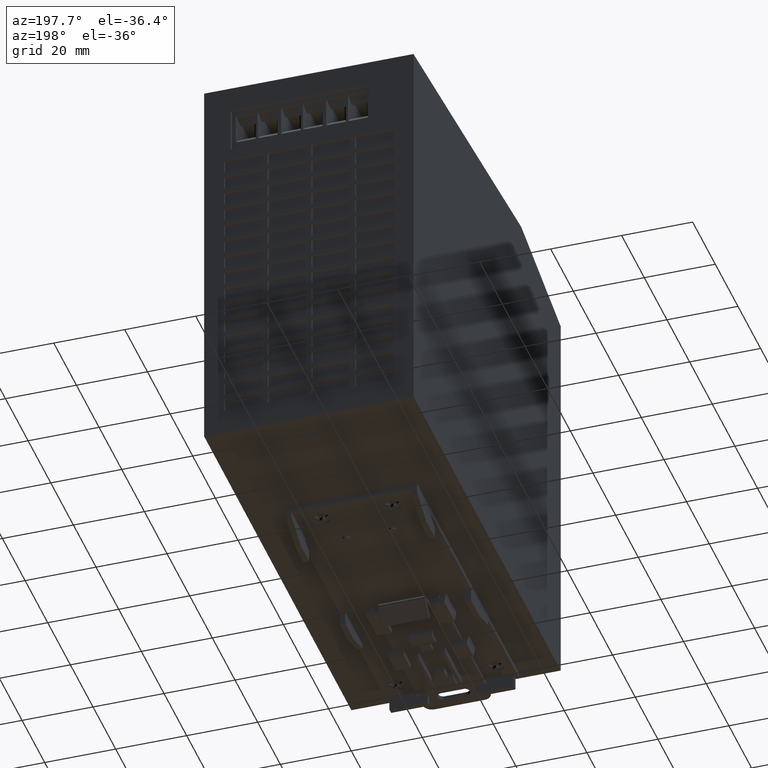
[diagram: clean part render]
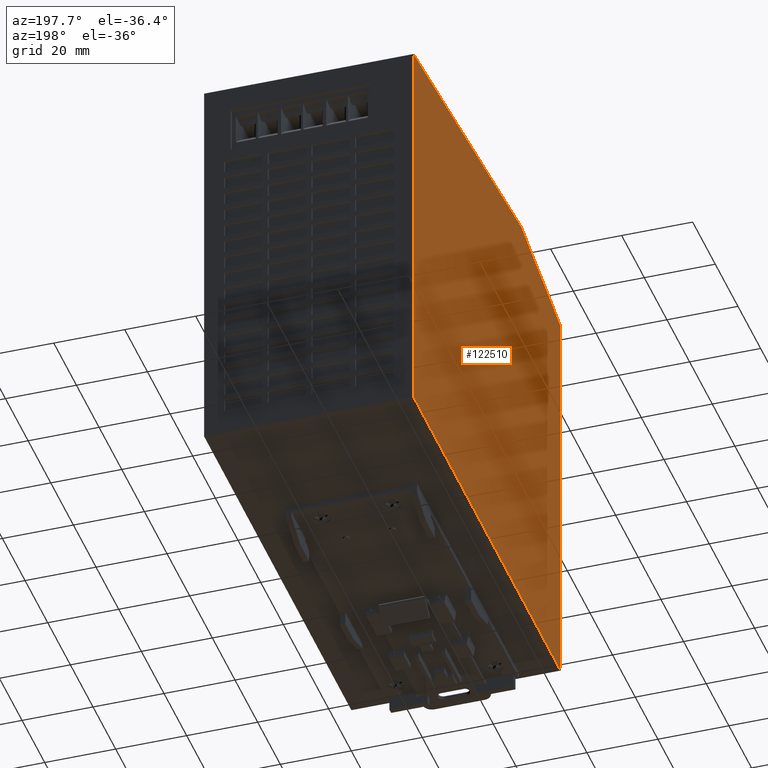
[diagram: same view with one face highlighted and labeled with its STEP entity id]
A machine part, auxiliary view. The second image highlights one B-rep face of the part: STEP entity #122510.
In plain terms, the highlighted planar face has unit normal (1, 0, 0).
Its self-contained STEP definition (entity closure, byte-faithful):
#21200=CARTESIAN_POINT('',(0.,0.,8.24457053163474));
#21210=DIRECTION('',(0.,-0.99999999999553,2.98985317938209E-6));
#21220=VECTOR('',#21210,1.);
#21230=LINE('',#21200,#21220);
#21240=CARTESIAN_POINT('',(0.,133.09953961981,8.24417258355303));
#21250=VERTEX_POINT('',#21240);
#21260=CARTESIAN_POINT('',(0.,3.06755310461,8.24456136010134));
#21270=VERTEX_POINT('',#21260);
#21280=EDGE_CURVE('',#21250,#21270,#21230,.T.);
#22450=CARTESIAN_POINT('',(0.,38.0066903348388,131.664919593357));
#22460=VERTEX_POINT('',#22450);
#22630=CARTESIAN_POINT('',(0.,3.06755310461,122.953614286679));
#22640=VERTEX_POINT('',#22630);
#22670=CARTESIAN_POINT('',(0.,0.,122.188787397491));
#22680=DIRECTION('',(0.,-0.970295726275989,-0.241921895599697));
#22690=VECTOR('',#22680,1.);
#22700=LINE('',#22670,#22690);
#22710=EDGE_CURVE('',#22460,#22640,#22700,.T.);
#45020=CARTESIAN_POINT('',(0.,133.09953961981,122.508519645316));
#45030=VERTEX_POINT('',#45020);
#45080=CARTESIAN_POINT('',(0.,133.09953961981,0.));
#45090=DIRECTION('',(0.,0.,1.));
#45100=VECTOR('',#45090,1.);
#45110=LINE('',#45080,#45100);
#45120=EDGE_CURVE('',#21250,#45030,#45110,.T.);
#122240=CARTESIAN_POINT('',(0.,3.06755310461,0.));
#122250=DIRECTION('',(0.,0.,1.));
#122260=VECTOR('',#122250,1.);
#122270=LINE('',#122240,#122260);
#122280=EDGE_CURVE('',#21270,#22640,#122270,.T.);
#122340=CARTESIAN_POINT('',(0.,135.000007773601,8.24416690143228));
#122350=DIRECTION('',(1.,-0.,0.));
#122360=DIRECTION('',(0.,0.99999999999553,-2.98985317938209E-6));
#122370=AXIS2_PLACEMENT_3D('',#122340,#122350,#122360);
#122380=PLANE('',#122370);
#122390=ORIENTED_EDGE('',*,*,#22710,.F.);
#122400=ORIENTED_EDGE('',*,*,#122280,.T.);
#122410=ORIENTED_EDGE('',*,*,#21280,.T.);
#122420=ORIENTED_EDGE('',*,*,#45120,.F.);
#122430=CARTESIAN_POINT('',(0.,0.,135.324547630837));
#122440=DIRECTION('',(0.,-0.99539619836718,0.0958457525202146));
#122450=VECTOR('',#122440,1.);
#122460=LINE('',#122430,#122450);
#122470=EDGE_CURVE('',#45030,#22460,#122460,.T.);
#122480=ORIENTED_EDGE('',*,*,#122470,.F.);
#122490=EDGE_LOOP('',(#122480,#122420,#122410,#122400,#122390));
#122500=FACE_OUTER_BOUND('',#122490,.T.);
#122510=ADVANCED_FACE('',(#122500),#122380,.F.);